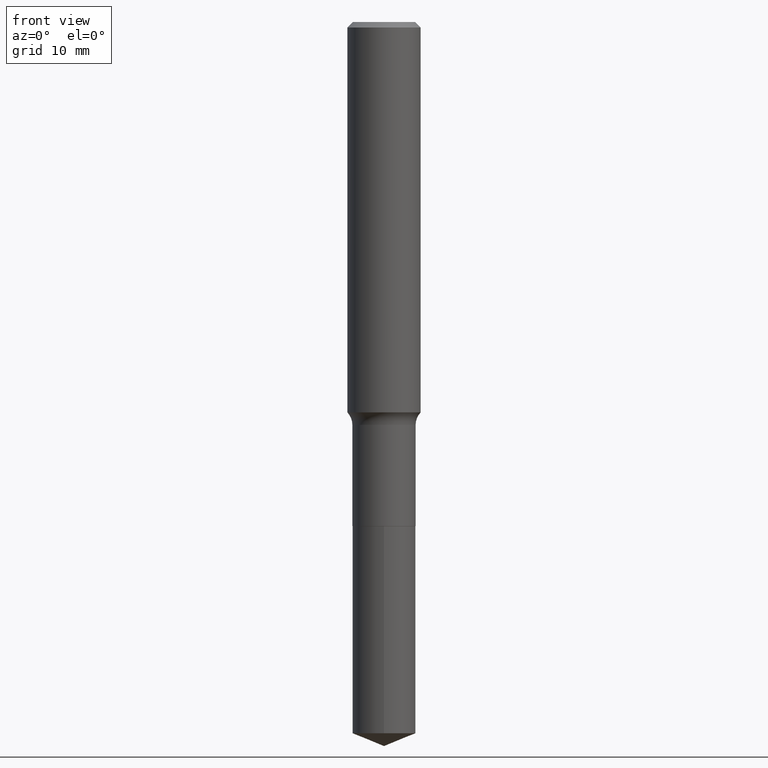
[diagram: clean part render]
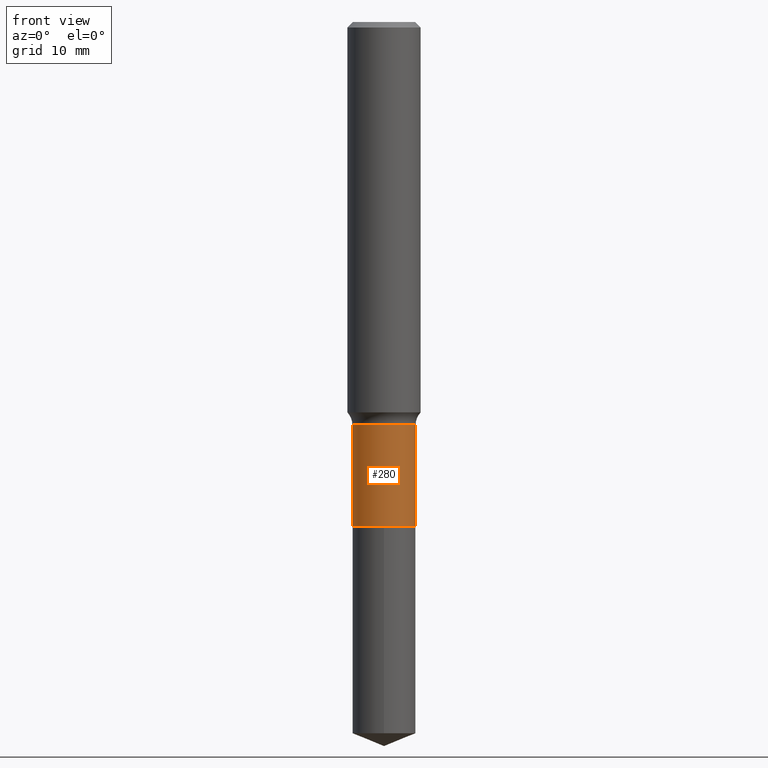
[diagram: same view with one face highlighted and labeled with its STEP entity id]
A machine part, front view. The second image highlights one B-rep face of the part: STEP entity #280.
In plain terms, the highlighted cylindrical surface (edge-blend (fillet) strip) has radius 3.4506 mm, axis along (-0, 0, 1).
Its self-contained STEP definition (entity closure, byte-faithful):
#11 = VERTEX_POINT ( 'NONE', #260 ) ;
#23 = CARTESIAN_POINT ( 'NONE',  ( 0.000000000000000000, 0.000000000000000000, 0.000000000000000000 ) ) ;
#40 = VECTOR ( 'NONE', #381, 39.37007874015748143 ) ;
#48 = CIRCLE ( 'NONE', #319, 0.1358499999999999985 ) ;
#98 = CARTESIAN_POINT ( 'NONE',  ( 4.232617409745234548E-29, -6.043055901269716567E-15, -1.730800000000000116 ) ) ;
#110 = CARTESIAN_POINT ( 'NONE',  ( -0.1358499999999999708, 9.652723065300958949E-16, -6.682373320111287681E-30 ) ) ;
#111 = AXIS2_PLACEMENT_3D ( 'NONE', #23, #136, #195 ) ;
#112 = VECTOR ( 'NONE', #231, 39.37007874015748143 ) ;
#133 = ORIENTED_EDGE ( 'NONE', *, *, #421, .T. ) ;
#136 = DIRECTION ( 'NONE',  ( -2.445468806185136597E-29, 3.491481338843145583E-15, 1.000000000000000000 ) ) ;
#156 = CIRCLE ( 'NONE', #271, 0.1358499999999999430 ) ;
#164 = VERTEX_POINT ( 'NONE', #448 ) ;
#165 = DIRECTION ( 'NONE',  ( -2.445468806185136597E-29, 3.491481338843145583E-15, 1.000000000000000000 ) ) ;
#171 = ORIENTED_EDGE ( 'NONE', *, *, #453, .T. ) ;
#192 = LINE ( 'NONE', #303, #112 ) ;
#195 = DIRECTION ( 'NONE',  ( 1.000000000000000000, -6.982962677686265133E-15, 4.876176775795935232E-29 ) ) ;
#205 = VERTEX_POINT ( 'NONE', #478 ) ;
#208 = DIRECTION ( 'NONE',  ( 1.000000000000000000, -6.982962677686268288E-15, 0.000000000000000000 ) ) ;
#213 = EDGE_CURVE ( 'NONE', #205, #245, #156, .T. ) ;
#231 = DIRECTION ( 'NONE',  ( -2.445468806185136877E-29, 3.491481338843145188E-15, 1.000000000000000000 ) ) ;
#245 = VERTEX_POINT ( 'NONE', #445 ) ;
#260 = CARTESIAN_POINT ( 'NONE',  ( -0.1358499999999999985, -5.835435045268582804E-15, -2.164800000000000058 ) ) ;
#261 = DIRECTION ( 'NONE',  ( -2.445468806185136597E-29, 3.491481338843145583E-15, 1.000000000000000000 ) ) ;
#271 = AXIS2_PLACEMENT_3D ( 'NONE', #98, #261, #364 ) ;
#280 = ADVANCED_FACE ( 'NONE', ( #298 ), #378, .T. ) ;
#295 = ORIENTED_EDGE ( 'NONE', *, *, #213, .F. ) ;
#298 = FACE_OUTER_BOUND ( 'NONE', #409, .T. ) ;
#302 = LINE ( 'NONE', #110, #40 ) ;
#303 = CARTESIAN_POINT ( 'NONE',  ( 0.1358499999999999708, -9.486354797636789603E-16, 6.624286149918776493E-30 ) ) ;
#319 = AXIS2_PLACEMENT_3D ( 'NONE', #384, #165, #208 ) ;
#364 = DIRECTION ( 'NONE',  ( 1.000000000000000000, -6.982962677686264344E-15, 0.000000000000000000 ) ) ;
#378 = CYLINDRICAL_SURFACE ( 'NONE', #111, 0.1358499999999999708 ) ;
#381 = DIRECTION ( 'NONE',  ( -2.445468806185136877E-29, 3.491481338843145188E-15, 1.000000000000000000 ) ) ;
#384 = CARTESIAN_POINT ( 'NONE',  ( 5.293950871629583880E-29, -7.558358802327641618E-15, -2.164800000000000058 ) ) ;
#405 = ORIENTED_EDGE ( 'NONE', *, *, #427, .F. ) ;
#409 = EDGE_LOOP ( 'NONE', ( #405, #171, #133, #295 ) ) ;
#421 = EDGE_CURVE ( 'NONE', #164, #245, #192, .T. ) ;
#427 = EDGE_CURVE ( 'NONE', #11, #205, #302, .T. ) ;
#445 = CARTESIAN_POINT ( 'NONE',  ( 0.1358499999999999430, -6.991691381033394739E-15, -1.730800000000000116 ) ) ;
#448 = CARTESIAN_POINT ( 'NONE',  ( 0.1358499999999999985, -8.506994282091320579E-15, -2.164800000000000058 ) ) ;
#453 = EDGE_CURVE ( 'NONE', #11, #164, #48, .T. ) ;
#478 = CARTESIAN_POINT ( 'NONE',  ( -0.1358499999999999430, -5.835435045268582804E-15, -1.730800000000000116 ) ) ;